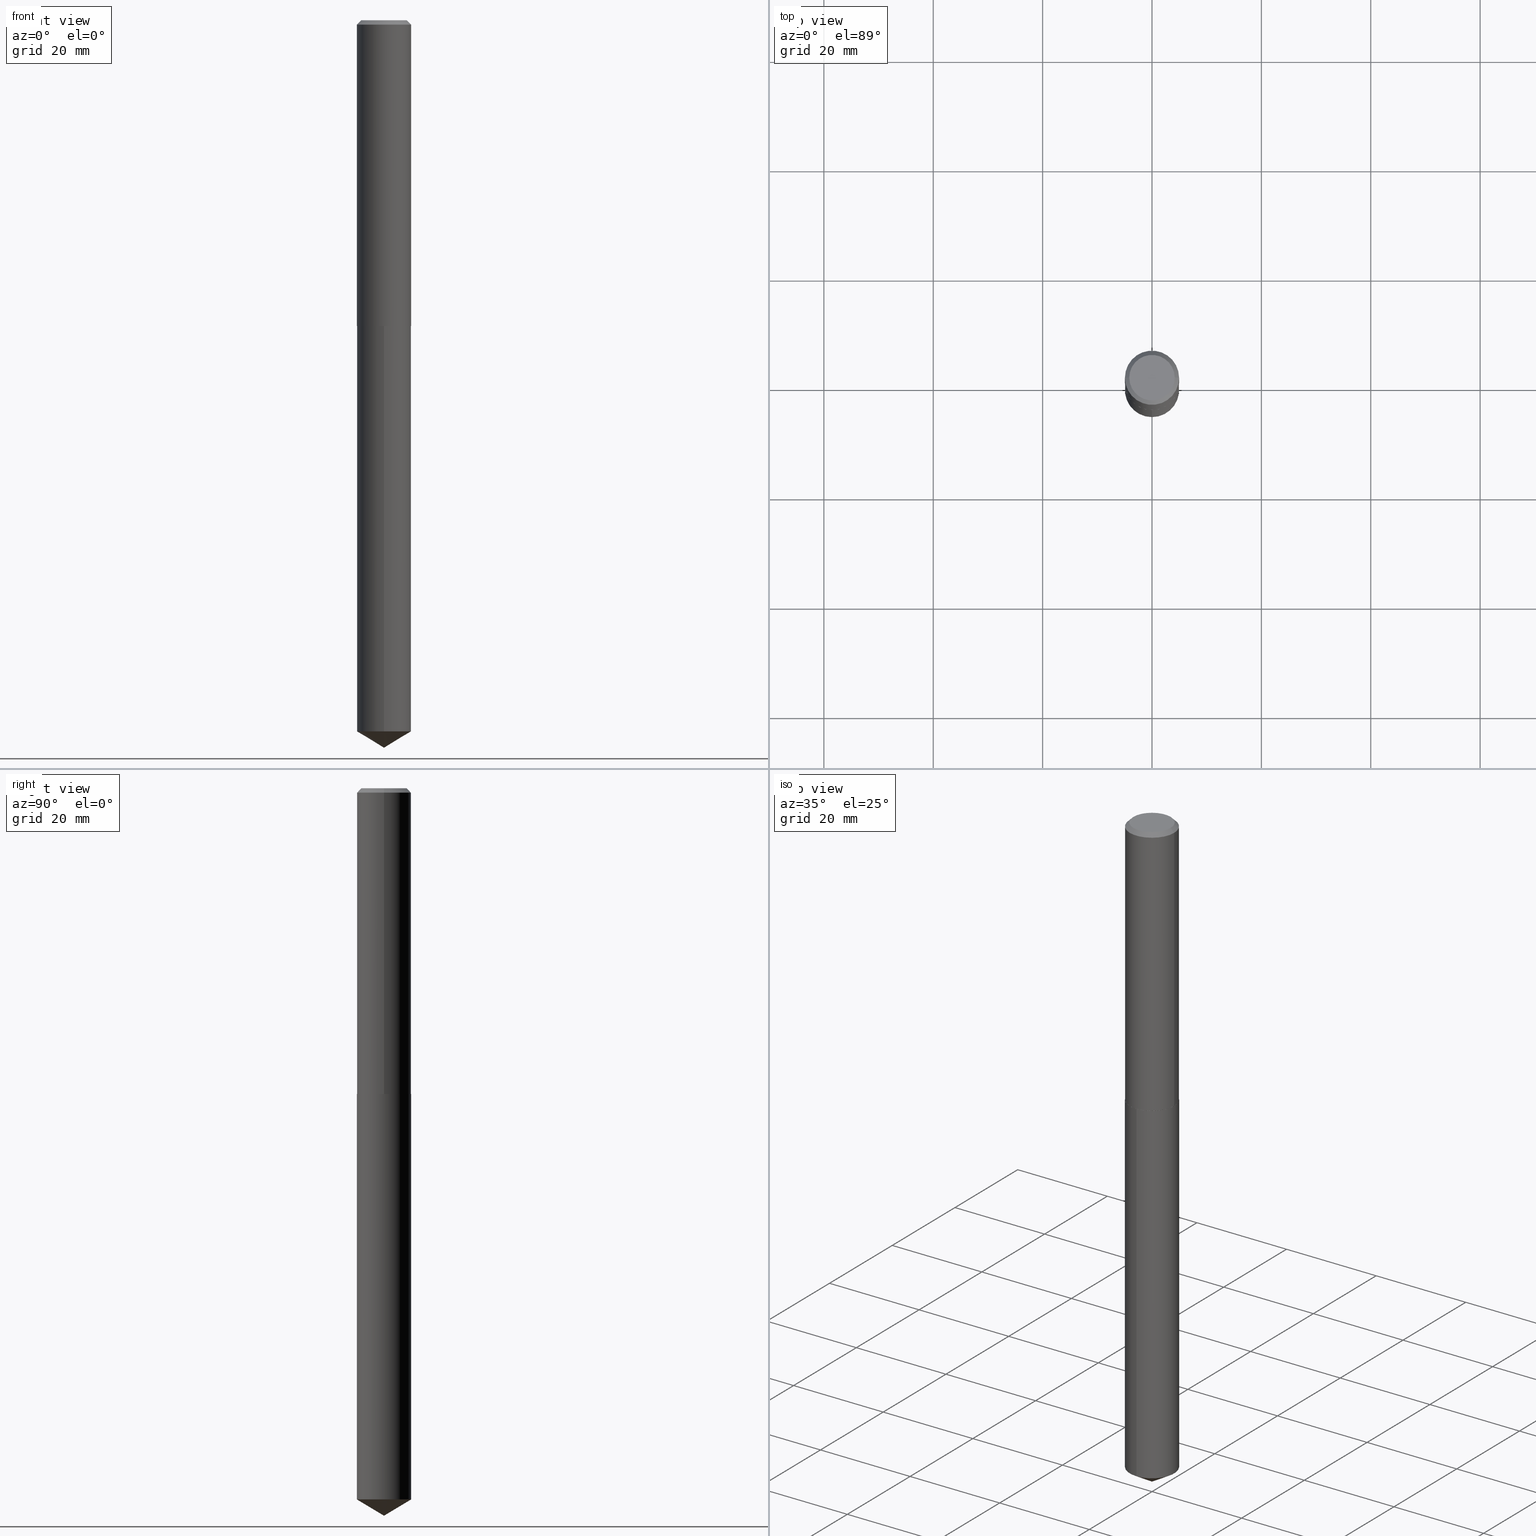
[diagram: canonical four-view strip — front | top / right | iso, engineering-drawing reading convention]
A machine part, canonical four-view strip (front | top / right | iso — engineering-drawing reading convention). The complete STEP part file that produces these views, byte-faithful:
ISO-10303-21;
HEADER;
FILE_DESCRIPTION (( 'STEP AP203' ),
    '1' );
FILE_NAME ('61123.STEP',
    '2024-04-23T04:29:42',
    ( '' ),
    ( '' ),
    'SwSTEP 2.0',
    'SolidWorks 2023',
    '' );
FILE_SCHEMA (( 'CONFIG_CONTROL_DESIGN' ));
ENDSEC;

DATA;
#1 = FACE_OUTER_BOUND ( 'NONE', #221, .T. ) ;
#2 = ORIENTED_EDGE ( 'NONE', *, *, #345, .F. ) ;
#3 = AXIS2_PLACEMENT_3D ( 'NONE', #199, #346, #344 ) ;
#4 = EDGE_CURVE ( 'NONE', #336, #355, #218, .T. ) ;
#5 = CC_DESIGN_APPROVAL ( #55, ( #97 ) ) ;
#6 = CARTESIAN_POINT ( 'NONE',  ( 1.280475189157821758E-28, -1.828239799830899086E-14, -5.236200000000000188 ) ) ;
#7 = LINE ( 'NONE', #98, #295 ) ;
#8 = ORIENTED_EDGE ( 'NONE', *, *, #19, .F. ) ;
#9 = EDGE_CURVE ( 'NONE', #269, #185, #24, .T. ) ;
#10 = CARTESIAN_POINT ( 'NONE',  ( 0.000000000000000000, 0.000000000000000000, 0.000000000000000000 ) ) ;
#11 = CARTESIAN_POINT ( 'NONE',  ( -0.1948999999999999899, 1.251870634042204188E-15, -0.03125000000000022898 ) ) ;
#12 = ADVANCED_FACE ( 'NONE', ( #86 ), #146, .T. ) ;
#13 = DIRECTION ( 'NONE',  ( 2.445468806185136597E-29, -3.491481338843145583E-15, -1.000000000000000000 ) ) ;
#14 = CC_DESIGN_PERSON_AND_ORGANIZATION_ASSIGNMENT ( #351, #265, ( #254 ) ) ;
#15 = CIRCLE ( 'NONE', #96, 0.1948999999999999899 ) ;
#16 = CARTESIAN_POINT ( 'NONE',  ( 1.280475189157821758E-28, -1.828239799830899086E-14, -5.236200000000000188 ) ) ;
#17 = MANIFOLD_SOLID_BREP ( 'Body-Move/Copy2[1]', #89 ) ;
#18 = DIRECTION ( 'NONE',  ( -1.000000000000000000, 6.982962677686266711E-15, 0.000000000000000000 ) ) ;
#19 = EDGE_CURVE ( 'NONE', #247, #284, #296, .T. ) ;
#20 = MECHANICAL_CONTEXT ( 'NONE', #73, 'mechanical' ) ;
#21 = VERTEX_POINT ( 'NONE', #381 ) ;
#22 = DIRECTION ( 'NONE',  ( 1.000000000000000000, -6.982962677686263555E-15, 0.000000000000000000 ) ) ;
#23 = PRODUCT_DEFINITION_SHAPE ( 'NONE', 'NONE',  #216 ) ;
#24 = CIRCLE ( 'NONE', #244, 0.1949000000000002952 ) ;
#25 = AXIS2_PLACEMENT_3D ( 'NONE', #176, #112, #201 ) ;
#26 = LOCAL_TIME ( 0, 29, 42.00000000000000000, #121 ) ;
#27 = DIRECTION ( 'NONE',  ( -6.982962677686266711E-15, -1.000000000000000000, 2.803332984776052637E-15 ) ) ;
#28 = EDGE_CURVE ( 'NONE', #132, #239, #150, .T. ) ;
#29 = VERTEX_POINT ( 'NONE', #211 ) ;
#30 = PERSON_AND_ORGANIZATION_ROLE ( 'design_supplier' ) ;
#31 = ORIENTED_EDGE ( 'NONE', *, *, #65, .T. ) ;
#32 = CONICAL_SURFACE ( 'NONE', #331, 0.1949000000000002952, 0.7853981633974482790 ) ;
#33 = ADVANCED_FACE ( 'NONE', ( #153 ), #272, .F. ) ;
#34 = PLANE ( 'NONE',  #358 ) ;
#35 = DIRECTION ( 'NONE',  ( 1.000000000000000000, -6.982962677686265922E-15, 4.876176775795935793E-29 ) ) ;
#36 = SHAPE_DEFINITION_REPRESENTATION ( #23, #68 ) ;
#37 = DIRECTION ( 'NONE',  ( -6.982962677686266711E-15, -1.000000000000000000, 2.803332984776052637E-15 ) ) ;
#38 = ORIENTED_EDGE ( 'NONE', *, *, #100, .T. ) ;
#39 = AXIS2_PLACEMENT_3D ( 'NONE', #166, #168, #67 ) ;
#40 = DIRECTION ( 'NONE',  ( -2.445468806185136597E-29, 3.491481338843145583E-15, 1.000000000000000000 ) ) ;
#41 = CARTESIAN_POINT ( 'NONE',  ( -5.989671091818699506E-48, 8.551662891794013634E-34, 2.449293598294725547E-19 ) ) ;
#42 = DIRECTION ( 'NONE',  ( 1.000000000000000000, -6.982962677686266711E-15, 4.876176775795935232E-29 ) ) ;
#43 = APPROVAL_PERSON_ORGANIZATION ( #179, #55, #385 ) ;
#44 = CARTESIAN_POINT ( 'NONE',  ( -0.1636499999999999622, 1.197316238122780624E-15, 2.449293598212901450E-19 ) ) ;
#45 = DIRECTION ( 'NONE',  ( -2.445468806185136597E-29, 3.491481338843145583E-15, 1.000000000000000000 ) ) ;
#46 = DIRECTION ( 'NONE',  ( -0.7071067811865474617, 7.493145998870352582E-15, 0.7071067811865474617 ) ) ;
#47 = CIRCLE ( 'NONE', #245, 0.1948999999999999899 ) ;
#48 = FACE_OUTER_BOUND ( 'NONE', #192, .T. ) ;
#49 = APPROVAL_ROLE ( '' ) ;
#50 = DIRECTION ( 'NONE',  ( -2.445468806185136597E-29, 3.491481338843145583E-15, 1.000000000000000000 ) ) ;
#51 = PERSON_AND_ORGANIZATION ( #142, #214 ) ;
#52 = ORIENTED_EDGE ( 'NONE', *, *, #139, .F. ) ;
#53 = PERSON_AND_ORGANIZATION_ROLE ( 'creator' ) ;
#54 = ORIENTED_EDGE ( 'NONE', *, *, #345, .T. ) ;
#55 = APPROVAL ( #158, 'UNSPECIFIED' ) ;
#56 = ORIENTED_EDGE ( 'NONE', *, *, #270, .T. ) ;
#57 = CARTESIAN_POINT ( 'NONE',  ( 0.000000000000000000, 0.000000000000000000, 0.000000000000000000 ) ) ;
#58 = ORIENTED_EDGE ( 'NONE', *, *, #332, .F. ) ;
#59 = EDGE_LOOP ( 'NONE', ( #131, #58 ) ) ;
#60 = EDGE_CURVE ( 'NONE', #163, #21, #157, .T. ) ;
#61 = ORIENTED_EDGE ( 'NONE', *, *, #270, .F. ) ;
#62 = LOCAL_TIME ( 0, 29, 42.00000000000000000, #85 ) ;
#63 = DIRECTION ( 'NONE',  ( -2.445468806185136597E-29, 3.491481338843145583E-15, 1.000000000000000000 ) ) ;
#64 = EDGE_LOOP ( 'NONE', ( #329, #341, #75, #93 ) ) ;
#65 = EDGE_CURVE ( 'NONE', #239, #161, #224, .T. ) ;
#66 = CARTESIAN_POINT ( 'NONE',  ( 1.251846236859382793E-28, -1.787338421687552723E-14, -5.119092265351530280 ) ) ;
#67 = DIRECTION ( 'NONE',  ( 1.000000000000000000, -6.982962677686266711E-15, 4.876176775795935232E-29 ) ) ;
#68 = ADVANCED_BREP_SHAPE_REPRESENTATION ( '61123', ( #17, #280, #268 ), #307 ) ;
#69 = CARTESIAN_POINT ( 'NONE',  ( 5.381987748652249892E-29, -7.684052130525997764E-15, -2.200800000000000534 ) ) ;
#70 = CIRCLE ( 'NONE', #338, 0.1948999999999999899 ) ;
#71 = AXIS2_PLACEMENT_3D ( 'NONE', #66, #250, #162 ) ;
#72 = CARTESIAN_POINT ( 'NONE',  ( 5.380765014249158212E-29, -7.682306389856577049E-15, -2.200300000000000811 ) ) ;
#73 = APPLICATION_CONTEXT ( 'configuration controlled 3d designs of mechanical parts and assemblies' ) ;
#74 = LINE ( 'NONE', #174, #205 ) ;
#75 = ORIENTED_EDGE ( 'NONE', *, *, #251, .T. ) ;
#76 = LINE ( 'NONE', #11, #106 ) ;
#77 = EDGE_CURVE ( 'NONE', #355, #336, #116, .T. ) ;
#78 = CARTESIAN_POINT ( 'NONE',  ( 7.642090019328607917E-31, -1.091087918388491006E-16, -0.03125000000000022898 ) ) ;
#79 = LINE ( 'NONE', #342, #350 ) ;
#80 = PLANE ( 'NONE',  #25 ) ;
#81 = CONICAL_SURFACE ( 'NONE', #170, 0.1949000000000002952, 0.7853981633974482790 ) ;
#82 =( NAMED_UNIT ( * ) PLANE_ANGLE_UNIT ( ) SI_UNIT ( $, .RADIAN. ) );
#83 = ADVANCED_FACE ( 'NONE', ( #196 ), #243, .T. ) ;
#84 = PRODUCT ( '61123', '61123', '', ( #20 ) ) ;
#85 = COORDINATED_UNIVERSAL_TIME_OFFSET ( 5, 0, .BEHIND. ) ;
#86 = FACE_OUTER_BOUND ( 'NONE', #123, .T. ) ;
#87 = ORIENTED_EDGE ( 'NONE', *, *, #77, .T. ) ;
#88 = DIRECTION ( 'NONE',  ( -2.445428343374626314E-29, 3.491539283890796548E-15, 1.000000000000000000 ) ) ;
#89 = CLOSED_SHELL ( 'NONE', ( #12, #223, #212, #99, #33 ) ) ;
#90 = AXIS2_PLACEMENT_3D ( 'NONE', #248, #101, #276 ) ;
#91 = EDGE_CURVE ( 'NONE', #247, #132, #279, .T. ) ;
#92 = CALENDAR_DATE ( 2024, 23, 4 ) ;
#93 = ORIENTED_EDGE ( 'NONE', *, *, #289, .F. ) ;
#94 = DATE_TIME_ROLE ( 'creation_date' ) ;
#95 = ORIENTED_EDGE ( 'NONE', *, *, #386, .F. ) ;
#96 = AXIS2_PLACEMENT_3D ( 'NONE', #113, #256, #230 ) ;
#97 = PRODUCT_DEFINITION_FORMATION_WITH_SPECIFIED_SOURCE ( 'ANY', '', #84, .NOT_KNOWN. ) ;
#98 = CARTESIAN_POINT ( 'NONE',  ( 0.1949000000000002952, -9.043285815737631719E-15, -2.200300000000000811 ) ) ;
#99 = ADVANCED_FACE ( 'NONE', ( #1 ), #308, .T. ) ;
#100 = EDGE_CURVE ( 'NONE', #161, #239, #47, .T. ) ;
#101 = DIRECTION ( 'NONE',  ( -2.445468806185136597E-29, 3.491481338843145583E-15, 1.000000000000000000 ) ) ;
#102 = DIRECTION ( 'NONE',  ( -2.445428343374626314E-29, 3.491539283890796548E-15, 1.000000000000000000 ) ) ;
#103 = ORIENTED_EDGE ( 'NONE', *, *, #164, .F. ) ;
#104 = PRODUCT_RELATED_PRODUCT_CATEGORY ( 'detail', '', ( #84 ) ) ;
#105 = DIRECTION ( 'NONE',  ( -2.445468806185136597E-29, 3.491481338843145583E-15, 1.000000000000000000 ) ) ;
#106 = VECTOR ( 'NONE', #138, 39.37007874015748143 ) ;
#107 = ORIENTED_EDGE ( 'NONE', *, *, #100, .F. ) ;
#108 = DIRECTION ( 'NONE',  ( 1.000000000000000000, -6.982962677686263555E-15, 0.000000000000000000 ) ) ;
#109 = FACE_OUTER_BOUND ( 'NONE', #120, .T. ) ;
#110 = FACE_OUTER_BOUND ( 'NONE', #159, .T. ) ;
#111 = AXIS2_PLACEMENT_3D ( 'NONE', #125, #105, #283 ) ;
#112 = DIRECTION ( 'NONE',  ( 2.438088387897960049E-29, -3.491481338843145188E-15, -1.000000000000000000 ) ) ;
#113 = CARTESIAN_POINT ( 'NONE',  ( 1.251846236859382793E-28, -1.787338421687552723E-14, -5.119092265351530280 ) ) ;
#114 = APPROVAL_DATE_TIME ( #275, #55 ) ;
#115 = CLOSED_SHELL ( 'NONE', ( #320, #217, #154, #136, #312, #83, #335, #327 ) ) ;
#116 = CIRCLE ( 'NONE', #90, 0.1636499999999999622 ) ;
#117 = LOCAL_TIME ( 0, 29, 42.00000000000000000, #145 ) ;
#118 = APPROVAL_STATUS ( 'not_yet_approved' ) ;
#119 =( CONVERSION_BASED_UNIT ( 'INCH', #206 ) LENGTH_UNIT ( ) NAMED_UNIT ( #264 ) );
#120 = EDGE_LOOP ( 'NONE', ( #87, #298 ) ) ;
#121 = COORDINATED_UNIVERSAL_TIME_OFFSET ( 5, 0, .BEHIND. ) ;
#122 = AXIS2_PLACEMENT_3D ( 'NONE', #232, #293, #140 ) ;
#123 = EDGE_LOOP ( 'NONE', ( #354, #54, #124, #180 ) ) ;
#124 = ORIENTED_EDGE ( 'NONE', *, *, #65, .F. ) ;
#125 = CARTESIAN_POINT ( 'NONE',  ( 5.381987748652249892E-29, -7.684052130525997764E-15, -2.200800000000000534 ) ) ;
#126 = VECTOR ( 'NONE', #209, 39.37007874015748143 ) ;
#127 = CONICAL_SURFACE ( 'NONE', #285, 0.1948999999999999899, 0.7853981633974447263 ) ;
#128 = DIRECTION ( 'NONE',  ( 1.000000000000000000, -6.982962677686266711E-15, 0.000000000000000000 ) ) ;
#129 = ORIENTED_EDGE ( 'NONE', *, *, #28, .T. ) ;
#130 = DIRECTION ( 'NONE',  ( 0.7071067811865474617, -2.468850131082256666E-15, 0.7071067811865474617 ) ) ;
#131 = ORIENTED_EDGE ( 'NONE', *, *, #60, .F. ) ;
#132 = VERTEX_POINT ( 'NONE', #187 ) ;
#133 = DESIGN_CONTEXT ( 'detailed design', #352, 'design' ) ;
#134 = CARTESIAN_POINT ( 'NONE',  ( -0.1949000000000002952, -6.297458597860138900E-15, -2.200300000000000811 ) ) ;
#135 = AXIS2_PLACEMENT_3D ( 'NONE', #10, #286, #42 ) ;
#136 = ADVANCED_FACE ( 'NONE', ( #365 ), #34, .F. ) ;
#137 = CYLINDRICAL_SURFACE ( 'NONE', #135, 0.1949000000000001565 ) ;
#138 = DIRECTION ( 'NONE',  ( -0.7071067811865450192, 2.468850131082230634E-15, -0.7071067811865500152 ) ) ;
#139 = EDGE_CURVE ( 'NONE', #29, #387, #141, .T. ) ;
#140 = DIRECTION ( 'NONE',  ( -6.982962677686265133E-15, -1.000000000000000000, 3.468864327941560293E-15 ) ) ;
#141 = CIRCLE ( 'NONE', #364, 0.1948999999999999899 ) ;
#142 = PERSON ( 'UNSPECIFIED', 'UNSPECIFIED', 'UNSPECIFIED', ('UNSPECIFIED'), ('UNSPECIFIED'), ('UNSPECIFIED') ) ;
#143 = DIRECTION ( 'NONE',  ( -2.445468806185136597E-29, 3.491481338843145583E-15, 1.000000000000000000 ) ) ;
#144 = DIRECTION ( 'NONE',  ( 1.000000000000000000, -6.982962677686263555E-15, 0.000000000000000000 ) ) ;
#145 = COORDINATED_UNIVERSAL_TIME_OFFSET ( 5, 0, .BEHIND. ) ;
#146 = CYLINDRICAL_SURFACE ( 'NONE', #147, 0.1948999999999999899 ) ;
#147 = AXIS2_PLACEMENT_3D ( 'NONE', #357, #361, #27 ) ;
#148 = CC_DESIGN_APPROVAL ( #241, ( #254 ) ) ;
#149 = APPLICATION_PROTOCOL_DEFINITION ( 'international standard', 'config_control_design', 1994, #73 ) ;
#150 = LINE ( 'NONE', #236, #213 ) ;
#151 = EDGE_LOOP ( 'NONE', ( #313, #368, #252, #103 ) ) ;
#152 = APPROVAL_ROLE ( '' ) ;
#153 = FACE_OUTER_BOUND ( 'NONE', #249, .T. ) ;
#154 = ADVANCED_FACE ( 'NONE', ( #337 ), #32, .T. ) ;
#155 = COORDINATED_UNIVERSAL_TIME_OFFSET ( 5, 0, .BEHIND. ) ;
#156 = ORIENTED_EDGE ( 'NONE', *, *, #349, .F. ) ;
#157 = CIRCLE ( 'NONE', #111, 0.1944000000000003781 ) ;
#158 = APPROVAL_STATUS ( 'not_yet_approved' ) ;
#159 = EDGE_LOOP ( 'NONE', ( #95, #388, #303, #215 ) ) ;
#160 = DIRECTION ( 'NONE',  ( -2.445428343374626314E-29, 3.491539283890796548E-15, 1.000000000000000000 ) ) ;
#161 = VERTEX_POINT ( 'NONE', #167 ) ;
#162 = DIRECTION ( 'NONE',  ( -6.982962677686266711E-15, -1.000000000000000000, 5.606665969552105274E-15 ) ) ;
#163 = VERTEX_POINT ( 'NONE', #281 ) ;
#164 = EDGE_CURVE ( 'NONE', #163, #269, #7, .T. ) ;
#165 = AXIS2_PLACEMENT_3D ( 'NONE', #188, #339, #37 ) ;
#166 = CARTESIAN_POINT ( 'NONE',  ( 0.000000000000000000, 0.000000000000000000, 0.000000000000000000 ) ) ;
#167 = CARTESIAN_POINT ( 'NONE',  ( 1.384847791996560817E-15, 0.1948999999999923294, -2.200800000000001422 ) ) ;
#168 = DIRECTION ( 'NONE',  ( -2.445468806185136597E-29, 3.491481338843145583E-15, 1.000000000000000000 ) ) ;
#169 = FACE_OUTER_BOUND ( 'NONE', #309, .T. ) ;
#170 = AXIS2_PLACEMENT_3D ( 'NONE', #347, #45, #144 ) ;
#171 =( LENGTH_UNIT ( ) NAMED_UNIT ( * ) SI_UNIT ( $, .METRE. ) );
#172 = EDGE_CURVE ( 'NONE', #185, #269, #194, .T. ) ;
#173 = CARTESIAN_POINT ( 'NONE',  ( 0.1636499999999999622, -1.284470174469915757E-15, 2.449293598379592612E-19 ) ) ;
#174 = CARTESIAN_POINT ( 'NONE',  ( 0.1948999999999999899, -1.446219851604520290E-15, -0.03125000000000022898 ) ) ;
#175 = VECTOR ( 'NONE', #321, 39.37007874015748143 ) ;
#176 = CARTESIAN_POINT ( 'NONE',  ( -2.994835545909349753E-48, 4.275831445897006817E-34, 1.224646799147362773E-19 ) ) ;
#177 = APPROVAL_STATUS ( 'not_yet_approved' ) ;
#178 = CC_DESIGN_DATE_AND_TIME_ASSIGNMENT ( #328, #94, ( #216 ) ) ;
#179 = PERSON_AND_ORGANIZATION ( #142, #214 ) ;
#180 = ORIENTED_EDGE ( 'NONE', *, *, #28, .F. ) ;
#181 = CC_DESIGN_APPROVAL ( #348, ( #216 ) ) ;
#182 = APPROVAL_DATE_TIME ( #301, #348 ) ;
#183 = PERSON_AND_ORGANIZATION ( #142, #214 ) ;
#184 = ORIENTED_EDGE ( 'NONE', *, *, #77, .F. ) ;
#185 = VERTEX_POINT ( 'NONE', #134 ) ;
#186 = VECTOR ( 'NONE', #46, 39.37007874015748854 ) ;
#187 = CARTESIAN_POINT ( 'NONE',  ( -1.360979425880928254E-15, -0.1949000000000179200, -5.119092265351528503 ) ) ;
#188 = CARTESIAN_POINT ( 'NONE',  ( 5.381987748652249892E-29, -7.684052130525997764E-15, -2.200800000000000534 ) ) ;
#189 = ORIENTED_EDGE ( 'NONE', *, *, #377, .T. ) ;
#190 = CC_DESIGN_PERSON_AND_ORGANIZATION_ASSIGNMENT ( #326, #53, ( #97 ) ) ;
#191 = DIRECTION ( 'NONE',  ( -2.438088387897960049E-29, 3.491481338843145188E-15, 1.000000000000000000 ) ) ;
#192 = EDGE_LOOP ( 'NONE', ( #226, #193, #390, #61 ) ) ;
#193 = ORIENTED_EDGE ( 'NONE', *, *, #349, .T. ) ;
#194 = CIRCLE ( 'NONE', #260, 0.1949000000000002952 ) ;
#195 = LOCAL_TIME ( 0, 29, 42.00000000000000000, #360 ) ;
#196 = FACE_OUTER_BOUND ( 'NONE', #64, .T. ) ;
#197 = APPROVAL_DATE_TIME ( #323, #241 ) ;
#198 = EDGE_LOOP ( 'NONE', ( #366, #189, #52, #297 ) ) ;
#199 = CARTESIAN_POINT ( 'NONE',  ( 5.381987748652249892E-29, -7.684052130525997764E-15, -2.200800000000000534 ) ) ;
#200 = EDGE_CURVE ( 'NONE', #284, #132, #266, .T. ) ;
#201 = DIRECTION ( 'NONE',  ( -1.000000000000000000, 6.982962677686265922E-15, -4.876176775795935793E-29 ) ) ;
#202 = LINE ( 'NONE', #372, #274 ) ;
#203 = CARTESIAN_POINT ( 'NONE',  ( 7.642090019328607917E-31, -1.091087918388491006E-16, -0.03125000000000022898 ) ) ;
#204 = DIRECTION ( 'NONE',  ( -6.982962677686265133E-15, -1.000000000000000000, 3.468864327941560293E-15 ) ) ;
#205 = VECTOR ( 'NONE', #231, 39.37007874015748143 ) ;
#206 = LENGTH_MEASURE_WITH_UNIT ( LENGTH_MEASURE( 0.02539999999999999897 ), #171 );
#207 = CALENDAR_DATE ( 2024, 23, 4 ) ;
#208 = EDGE_LOOP ( 'NONE', ( #8, #300, #242 ) ) ;
#209 = DIRECTION ( 'NONE',  ( 6.090539988449795790E-15, 0.8571673007021163304, 0.5150380749100474942 ) ) ;
#210 = PERSON_AND_ORGANIZATION_ROLE ( 'design_owner' ) ;
#211 = CARTESIAN_POINT ( 'NONE',  ( 0.1948999999999999899, -1.470088217719902192E-15, -0.03125000000000022898 ) ) ;
#212 = ADVANCED_FACE ( 'NONE', ( #277 ), #315, .T. ) ;
#213 = VECTOR ( 'NONE', #88, 39.37007874015748143 ) ;
#214 = ORGANIZATION ( 'UNSPECIFIED', 'UNSPECIFIED', '' ) ;
#215 = ORIENTED_EDGE ( 'NONE', *, *, #172, .F. ) ;
#216 = PRODUCT_DEFINITION ( 'UNKNOWN', '', #97, #133 ) ;
#217 = ADVANCED_FACE ( 'NONE', ( #257 ), #137, .T. ) ;
#218 = CIRCLE ( 'NONE', #314, 0.1636499999999999622 ) ;
#219 = APPROVAL_PERSON_ORGANIZATION ( #51, #348, #152 ) ;
#220 = DIRECTION ( 'NONE',  ( -6.982962677686266711E-15, -1.000000000000000000, 2.803332984776052637E-15 ) ) ;
#221 = EDGE_LOOP ( 'NONE', ( #2, #237, #129, #107 ) ) ;
#222 = CARTESIAN_POINT ( 'NONE',  ( 7.642090019328607917E-31, -1.091087918388491006E-16, -0.03125000000000022898 ) ) ;
#223 = ADVANCED_FACE ( 'NONE', ( #259 ), #240, .T. ) ;
#224 = CIRCLE ( 'NONE', #165, 0.1948999999999999899 ) ;
#225 = DIRECTION ( 'NONE',  ( -2.445428343374626314E-29, 3.491539283890796548E-15, 1.000000000000000000 ) ) ;
#226 = ORIENTED_EDGE ( 'NONE', *, *, #4, .F. ) ;
#227 = CARTESIAN_POINT ( 'NONE',  ( -0.1949000000000002952, -6.297458597860138900E-15, -2.200300000000000811 ) ) ;
#228 = DIRECTION ( 'NONE',  ( 2.445468806185136597E-29, -3.491481338843145583E-15, -1.000000000000000000 ) ) ;
#229 = DIRECTION ( 'NONE',  ( -2.445468806185136597E-29, 3.491481338843145583E-15, 1.000000000000000000 ) ) ;
#230 = DIRECTION ( 'NONE',  ( -6.982962677686266711E-15, -1.000000000000000000, 5.606665969552105274E-15 ) ) ;
#231 = DIRECTION ( 'NONE',  ( 0.7071067811865450192, -7.319954787623246579E-15, -0.7071067811865500152 ) ) ;
#232 = CARTESIAN_POINT ( 'NONE',  ( -8.347186548994031049E-28, 1.191799060582856202E-13, 34.13387874015747769 ) ) ;
#233 = SECURITY_CLASSIFICATION_LEVEL ( 'unclassified' ) ;
#234 = DATE_AND_TIME ( #353, #316 ) ;
#235 =( NAMED_UNIT ( * ) SI_UNIT ( $, .STERADIAN. ) SOLID_ANGLE_UNIT ( ) );
#236 = CARTESIAN_POINT ( 'NONE',  ( -1.360979425880999252E-15, -0.1949000000000076782, -2.200800000000000090 ) ) ;
#237 = ORIENTED_EDGE ( 'NONE', *, *, #200, .T. ) ;
#238 = CALENDAR_DATE ( 2024, 23, 4 ) ;
#239 = VERTEX_POINT ( 'NONE', #287 ) ;
#240 = CONICAL_SURFACE ( 'NONE', #122, 65.52281426576907108, 1.029744258676658752 ) ;
#241 = APPROVAL ( #118, 'UNSPECIFIED' ) ;
#242 = ORIENTED_EDGE ( 'NONE', *, *, #200, .F. ) ;
#243 = CYLINDRICAL_SURFACE ( 'NONE', #39, 0.1949000000000001565 ) ;
#244 = AXIS2_PLACEMENT_3D ( 'NONE', #324, #50, #22 ) ;
#245 = AXIS2_PLACEMENT_3D ( 'NONE', #363, #160, #305 ) ;
#246 = CARTESIAN_POINT ( 'NONE',  ( 5.381987748652249892E-29, -7.684052130525997764E-15, -2.200800000000000534 ) ) ;
#247 = VERTEX_POINT ( 'NONE', #16 ) ;
#248 = CARTESIAN_POINT ( 'NONE',  ( -5.989671091818699506E-48, 8.551662891794013634E-34, 2.449293598294725547E-19 ) ) ;
#249 = EDGE_LOOP ( 'NONE', ( #31, #38 ) ) ;
#250 = DIRECTION ( 'NONE',  ( -2.445428343374626314E-29, 3.491539283890796548E-15, 1.000000000000000000 ) ) ;
#251 = EDGE_CURVE ( 'NONE', #269, #29, #202, .T. ) ;
#252 = ORIENTED_EDGE ( 'NONE', *, *, #9, .F. ) ;
#253 = AXIS2_PLACEMENT_3D ( 'NONE', #246, #102, #220 ) ;
#254 = SECURITY_CLASSIFICATION ( '', '', #233 ) ;
#255 = DIRECTION ( 'NONE',  ( 6.982962677686265922E-15, 1.000000000000000000, -3.491539283890796548E-15 ) ) ;
#256 = DIRECTION ( 'NONE',  ( -2.445428343374626314E-29, 3.491539283890796548E-15, 1.000000000000000000 ) ) ;
#257 = FACE_OUTER_BOUND ( 'NONE', #198, .T. ) ;
#258 = CC_DESIGN_PERSON_AND_ORGANIZATION_ASSIGNMENT ( #271, #384, ( #216 ) ) ;
#259 = FACE_OUTER_BOUND ( 'NONE', #302, .T. ) ;
#260 = AXIS2_PLACEMENT_3D ( 'NONE', #330, #63, #311 ) ;
#261 = CARTESIAN_POINT ( 'NONE',  ( 7.642090019328607917E-31, -1.091087918388491006E-16, -0.03125000000000022898 ) ) ;
#262 = EDGE_CURVE ( 'NONE', #132, #284, #15, .T. ) ;
#263 = LINE ( 'NONE', #375, #175 ) ;
#264 = DIMENSIONAL_EXPONENTS ( 1.000000000000000000, 0.000000000000000000, 0.000000000000000000, 0.000000000000000000, 0.000000000000000000, 0.000000000000000000, 0.000000000000000000 ) ;
#265 = PERSON_AND_ORGANIZATION_ROLE ( 'classification_officer' ) ;
#266 = CIRCLE ( 'NONE', #71, 0.1948999999999999899 ) ;
#267 = CARTESIAN_POINT ( 'NONE',  ( 1.280493155442143790E-28, -1.828214294738724808E-14, -5.236200000000000188 ) ) ;
#268 = AXIS2_PLACEMENT_3D ( 'NONE', #57, #383, #322 ) ;
#269 = VERTEX_POINT ( 'NONE', #371 ) ;
#270 = EDGE_CURVE ( 'NONE', #355, #387, #76, .T. ) ;
#271 = PERSON_AND_ORGANIZATION ( #142, #214 ) ;
#272 = PLANE ( 'NONE',  #378 ) ;
#273 = DATE_TIME_ROLE ( 'classification_date' ) ;
#274 = VECTOR ( 'NONE', #288, 39.37007874015748143 ) ;
#275 = DATE_AND_TIME ( #238, #117 ) ;
#276 = DIRECTION ( 'NONE',  ( 1.000000000000000000, -6.982962677686266711E-15, 4.876171972610107408E-29 ) ) ;
#277 = FACE_OUTER_BOUND ( 'NONE', #208, .T. ) ;
#278 = AXIS2_PLACEMENT_3D ( 'NONE', #367, #225, #204 ) ;
#279 = LINE ( 'NONE', #6, #369 ) ;
#280 = MANIFOLD_SOLID_BREP ( 'Body-Move/Copy2[2]', #115 ) ;
#281 = CARTESIAN_POINT ( 'NONE',  ( 0.1944000000000003781, -9.041540075068211004E-15, -2.200800000000000534 ) ) ;
#282 = UNCERTAINTY_MEASURE_WITH_UNIT (LENGTH_MEASURE( 1.000000000000000082E-05 ), #119, 'distance_accuracy_value', 'NONE');
#283 = DIRECTION ( 'NONE',  ( 1.000000000000000000, -6.982962677686268288E-15, 0.000000000000000000 ) ) ;
#284 = VERTEX_POINT ( 'NONE', #318 ) ;
#285 = AXIS2_PLACEMENT_3D ( 'NONE', #261, #13, #18 ) ;
#286 = DIRECTION ( 'NONE',  ( -2.445468806185136597E-29, 3.491481338843145583E-15, 1.000000000000000000 ) ) ;
#287 = CARTESIAN_POINT ( 'NONE',  ( -1.360979425880999252E-15, -0.1949000000000076782, -2.200800000000000090 ) ) ;
#288 = DIRECTION ( 'NONE',  ( -2.445468806185136877E-29, 3.491481338843145188E-15, 1.000000000000000000 ) ) ;
#289 = EDGE_CURVE ( 'NONE', #387, #29, #70, .T. ) ;
#290 = CONICAL_SURFACE ( 'NONE', #304, 0.1948999999999999899, 0.7853981633974447263 ) ;
#291 = CARTESIAN_POINT ( 'NONE',  ( -0.1948999999999999899, -2.510859798851274926E-15, -0.03125000000000022898 ) ) ;
#292 = APPROVAL_PERSON_ORGANIZATION ( #379, #241, #49 ) ;
#293 = DIRECTION ( 'NONE',  ( -2.445428343374626314E-29, 3.491539283890796548E-15, 1.000000000000000000 ) ) ;
#294 = CALENDAR_DATE ( 2024, 23, 4 ) ;
#295 = VECTOR ( 'NONE', #130, 39.37007874015748854 ) ;
#296 = LINE ( 'NONE', #267, #126 ) ;
#297 = ORIENTED_EDGE ( 'NONE', *, *, #251, .F. ) ;
#298 = ORIENTED_EDGE ( 'NONE', *, *, #4, .T. ) ;
#299 = DIRECTION ( 'NONE',  ( 1.000000000000000000, -6.982962677686266711E-15, 4.876171972610107408E-29 ) ) ;
#300 = ORIENTED_EDGE ( 'NONE', *, *, #91, .T. ) ;
#301 = DATE_AND_TIME ( #92, #195 ) ;
#302 = EDGE_LOOP ( 'NONE', ( #333, #340, #362 ) ) ;
#303 = ORIENTED_EDGE ( 'NONE', *, *, #164, .T. ) ;
#304 = AXIS2_PLACEMENT_3D ( 'NONE', #78, #228, #317 ) ;
#305 = DIRECTION ( 'NONE',  ( -6.982962677686266711E-15, -1.000000000000000000, 2.803332984776052637E-15 ) ) ;
#306 = DIRECTION ( 'NONE',  ( -2.445468806185136597E-29, 3.491481338843145583E-15, 1.000000000000000000 ) ) ;
#307 =( GEOMETRIC_REPRESENTATION_CONTEXT ( 3 ) GLOBAL_UNCERTAINTY_ASSIGNED_CONTEXT ( ( #282 ) ) GLOBAL_UNIT_ASSIGNED_CONTEXT ( ( #119, #82, #235 ) ) REPRESENTATION_CONTEXT ( 'NONE', 'WORKASPACE' ) );
#308 = CYLINDRICAL_SURFACE ( 'NONE', #253, 0.1948999999999999899 ) ;
#309 = EDGE_LOOP ( 'NONE', ( #156, #184, #56, #359 ) ) ;
#310 = CC_DESIGN_DATE_AND_TIME_ASSIGNMENT ( #234, #273, ( #254 ) ) ;
#311 = DIRECTION ( 'NONE',  ( 1.000000000000000000, -6.982962677686263555E-15, 0.000000000000000000 ) ) ;
#312 = ADVANCED_FACE ( 'NONE', ( #110 ), #81, .T. ) ;
#313 = ORIENTED_EDGE ( 'NONE', *, *, #60, .T. ) ;
#314 = AXIS2_PLACEMENT_3D ( 'NONE', #41, #229, #299 ) ;
#315 = CONICAL_SURFACE ( 'NONE', #278, 65.52281426576907108, 1.029744258676658752 ) ;
#316 = LOCAL_TIME ( 0, 29, 42.00000000000000000, #155 ) ;
#317 = DIRECTION ( 'NONE',  ( -1.000000000000000000, 6.982962677686266711E-15, 0.000000000000000000 ) ) ;
#318 = CARTESIAN_POINT ( 'NONE',  ( 1.384847791996560620E-15, 0.1948999999999821708, -5.119092265351531168 ) ) ;
#319 = DIRECTION ( 'NONE',  ( -2.445468806185136877E-29, 3.491481338843145188E-15, 1.000000000000000000 ) ) ;
#320 = ADVANCED_FACE ( 'NONE', ( #48 ), #127, .T. ) ;
#321 = DIRECTION ( 'NONE',  ( -2.445428343374626314E-29, 3.491539283890796548E-15, 1.000000000000000000 ) ) ;
#322 = DIRECTION ( 'NONE',  ( 1.000000000000000000, 0.000000000000000000, 0.000000000000000000 ) ) ;
#323 = DATE_AND_TIME ( #207, #62 ) ;
#324 = CARTESIAN_POINT ( 'NONE',  ( 5.380765014249158212E-29, -7.682306389856577049E-15, -2.200300000000000811 ) ) ;
#325 = APPLICATION_PROTOCOL_DEFINITION ( 'international standard', 'config_control_design', 1994, #352 ) ;
#326 = PERSON_AND_ORGANIZATION ( #142, #214 ) ;
#327 = ADVANCED_FACE ( 'NONE', ( #109 ), #80, .F. ) ;
#328 = DATE_AND_TIME ( #294, #26 ) ;
#329 = ORIENTED_EDGE ( 'NONE', *, *, #377, .F. ) ;
#330 = CARTESIAN_POINT ( 'NONE',  ( 5.380765014249158212E-29, -7.682306389856577049E-15, -2.200300000000000811 ) ) ;
#331 = AXIS2_PLACEMENT_3D ( 'NONE', #72, #40, #108 ) ;
#332 = EDGE_CURVE ( 'NONE', #21, #163, #343, .T. ) ;
#333 = ORIENTED_EDGE ( 'NONE', *, *, #91, .F. ) ;
#334 = DIRECTION ( 'NONE',  ( 2.445428343374626033E-29, -3.491539283890796548E-15, -1.000000000000000000 ) ) ;
#335 = ADVANCED_FACE ( 'NONE', ( #169 ), #290, .T. ) ;
#336 = VERTEX_POINT ( 'NONE', #173 ) ;
#337 = FACE_OUTER_BOUND ( 'NONE', #151, .T. ) ;
#338 = AXIS2_PLACEMENT_3D ( 'NONE', #203, #143, #373 ) ;
#339 = DIRECTION ( 'NONE',  ( -2.445428343374626314E-29, 3.491539283890796548E-15, 1.000000000000000000 ) ) ;
#340 = ORIENTED_EDGE ( 'NONE', *, *, #19, .T. ) ;
#341 = ORIENTED_EDGE ( 'NONE', *, *, #172, .T. ) ;
#342 = CARTESIAN_POINT ( 'NONE',  ( -0.1949000000000001565, 1.384847791996436374E-15, -9.587004490906818331E-30 ) ) ;
#343 = CIRCLE ( 'NONE', #3, 0.1944000000000003781 ) ;
#344 = DIRECTION ( 'NONE',  ( 1.000000000000000000, -6.982962677686268288E-15, 0.000000000000000000 ) ) ;
#345 = EDGE_CURVE ( 'NONE', #284, #161, #263, .T. ) ;
#346 = DIRECTION ( 'NONE',  ( -2.445468806185136597E-29, 3.491481338843145583E-15, 1.000000000000000000 ) ) ;
#347 = CARTESIAN_POINT ( 'NONE',  ( 5.380765014249158212E-29, -7.682306389856577049E-15, -2.200300000000000811 ) ) ;
#348 = APPROVAL ( #177, 'UNSPECIFIED' ) ;
#349 = EDGE_CURVE ( 'NONE', #336, #29, #74, .T. ) ;
#350 = VECTOR ( 'NONE', #319, 39.37007874015748143 ) ;
#351 = PERSON_AND_ORGANIZATION ( #142, #214 ) ;
#352 = APPLICATION_CONTEXT ( 'configuration controlled 3d designs of mechanical parts and assemblies' ) ;
#353 = CALENDAR_DATE ( 2024, 23, 4 ) ;
#354 = ORIENTED_EDGE ( 'NONE', *, *, #262, .T. ) ;
#355 = VERTEX_POINT ( 'NONE', #44 ) ;
#356 = PERSON_AND_ORGANIZATION ( #142, #214 ) ;
#357 = CARTESIAN_POINT ( 'NONE',  ( 5.381987748652249892E-29, -7.684052130525997764E-15, -2.200800000000000534 ) ) ;
#358 = AXIS2_PLACEMENT_3D ( 'NONE', #69, #191, #35 ) ;
#359 = ORIENTED_EDGE ( 'NONE', *, *, #289, .T. ) ;
#360 = COORDINATED_UNIVERSAL_TIME_OFFSET ( 5, 0, .BEHIND. ) ;
#361 = DIRECTION ( 'NONE',  ( -2.445428343374626314E-29, 3.491539283890796548E-15, 1.000000000000000000 ) ) ;
#362 = ORIENTED_EDGE ( 'NONE', *, *, #262, .F. ) ;
#363 = CARTESIAN_POINT ( 'NONE',  ( 5.381987748652249892E-29, -7.684052130525997764E-15, -2.200800000000000534 ) ) ;
#364 = AXIS2_PLACEMENT_3D ( 'NONE', #222, #306, #128 ) ;
#365 = FACE_OUTER_BOUND ( 'NONE', #59, .T. ) ;
#366 = ORIENTED_EDGE ( 'NONE', *, *, #9, .T. ) ;
#367 = CARTESIAN_POINT ( 'NONE',  ( -8.347186548994031049E-28, 1.191799060582856202E-13, 34.13387874015747769 ) ) ;
#368 = ORIENTED_EDGE ( 'NONE', *, *, #386, .T. ) ;
#369 = VECTOR ( 'NONE', #370, 39.37007874015748143 ) ;
#370 = DIRECTION ( 'NONE',  ( -5.985567269335959423E-15, -0.8571673007021126667, 0.5150380749100534894 ) ) ;
#371 = CARTESIAN_POINT ( 'NONE',  ( 0.1949000000000002952, -9.043285815737631719E-15, -2.200300000000000811 ) ) ;
#372 = CARTESIAN_POINT ( 'NONE',  ( 0.1949000000000001565, -1.360979425881054472E-15, 9.503668536026285822E-30 ) ) ;
#373 = DIRECTION ( 'NONE',  ( 1.000000000000000000, -6.982962677686266711E-15, 0.000000000000000000 ) ) ;
#374 = CC_DESIGN_PERSON_AND_ORGANIZATION_ASSIGNMENT ( #183, #30, ( #97 ) ) ;
#375 = CARTESIAN_POINT ( 'NONE',  ( 1.384847791996488833E-15, 0.1948999999999923016, -2.200800000000001422 ) ) ;
#376 = LINE ( 'NONE', #227, #186 ) ;
#377 = EDGE_CURVE ( 'NONE', #185, #387, #79, .T. ) ;
#378 = AXIS2_PLACEMENT_3D ( 'NONE', #389, #334, #255 ) ;
#379 = PERSON_AND_ORGANIZATION ( #142, #214 ) ;
#380 = CC_DESIGN_SECURITY_CLASSIFICATION ( #254, ( #97 ) ) ;
#381 = CARTESIAN_POINT ( 'NONE',  ( -0.1944000000000003781, -6.300107825034250102E-15, -2.200800000000000534 ) ) ;
#382 = CC_DESIGN_PERSON_AND_ORGANIZATION_ASSIGNMENT ( #356, #210, ( #84 ) ) ;
#383 = DIRECTION ( 'NONE',  ( 0.000000000000000000, 0.000000000000000000, 1.000000000000000000 ) ) ;
#384 = PERSON_AND_ORGANIZATION_ROLE ( 'creator' ) ;
#385 = APPROVAL_ROLE ( '' ) ;
#386 = EDGE_CURVE ( 'NONE', #21, #185, #376, .T. ) ;
#387 = VERTEX_POINT ( 'NONE', #291 ) ;
#388 = ORIENTED_EDGE ( 'NONE', *, *, #332, .T. ) ;
#389 = CARTESIAN_POINT ( 'NONE',  ( 5.381987748652249892E-29, -7.684052130525997764E-15, -2.200800000000000534 ) ) ;
#390 = ORIENTED_EDGE ( 'NONE', *, *, #139, .T. ) ;
ENDSEC;
END-ISO-10303-21;
